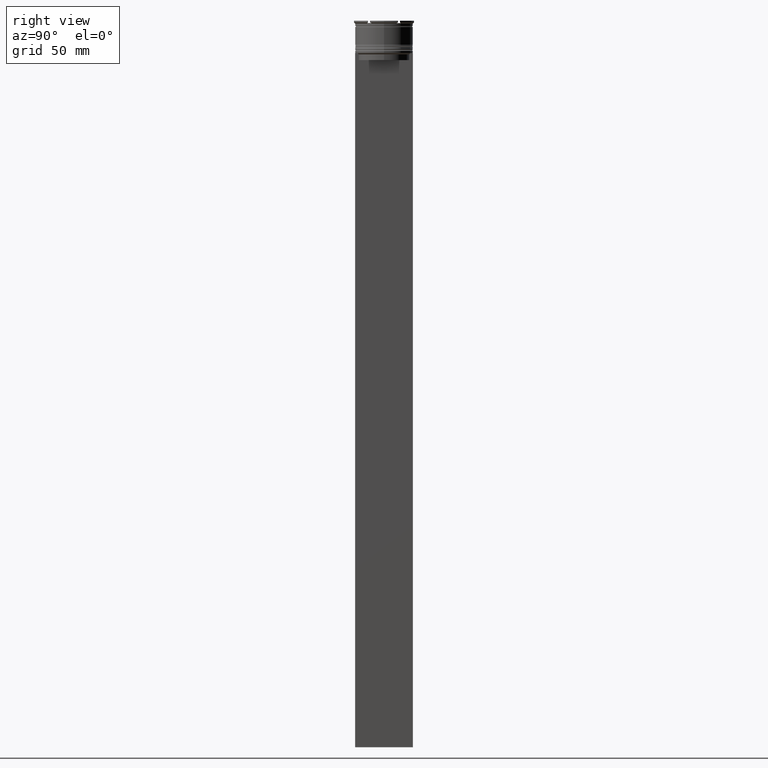
[diagram: clean part render]
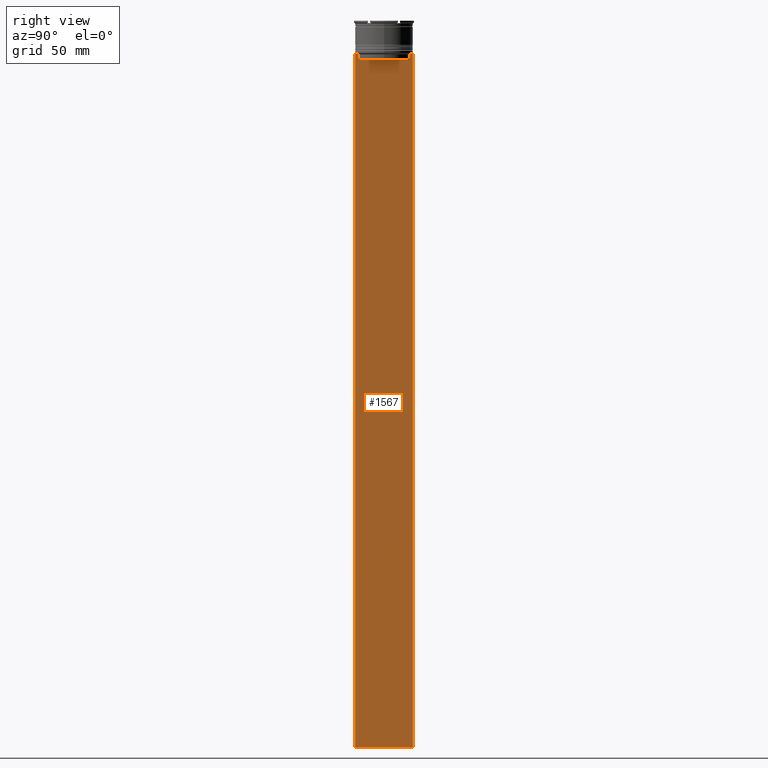
[diagram: same view with one face highlighted and labeled with its STEP entity id]
A machine part, right view. The second image highlights one B-rep face of the part: STEP entity #1567.
In plain terms, the highlighted planar face has unit normal (-1, 0, 0).
Its self-contained STEP definition (entity closure, byte-faithful):
#13 = CARTESIAN_POINT ( 'NONE',  ( 0.5000000000000000000, -12.38991525394746773, -14.00000000000000178 ) ) ;
#21 = VERTEX_POINT ( 'NONE', #1343 ) ;
#25 = EDGE_CURVE ( 'NONE', #1984, #1923, #521, .T. ) ;
#45 = CARTESIAN_POINT ( 'NONE',  ( 0.5000000000000000000, -12.49999999999999289, -314.0000000000000000 ) ) ;
#76 = CARTESIAN_POINT ( 'NONE',  ( 0.5000000000000000000, 10.88852607105296144, -17.00000000000000000 ) ) ;
#81 = EDGE_CURVE ( 'NONE', #21, #2035, #1091, .T. ) ;
#173 = LINE ( 'NONE', #894, #2297 ) ;
#188 = EDGE_CURVE ( 'NONE', #235, #1984, #1826, .T. ) ;
#232 = DIRECTION ( 'NONE',  ( -0.000000000000000000, -0.000000000000000000, 1.000000000000000000 ) ) ;
#235 = VERTEX_POINT ( 'NONE', #937 ) ;
#260 = EDGE_CURVE ( 'NONE', #576, #21, #1197, .T. ) ;
#276 = CARTESIAN_POINT ( 'NONE',  ( 0.5000000000000000000, 10.90000000000000213, -17.00000000000000000 ) ) ;
#311 = LINE ( 'NONE', #978, #1248 ) ;
#336 = CARTESIAN_POINT ( 'NONE',  ( 0.5000000000000000000, 12.38991525394746773, -14.00000000000000178 ) ) ;
#405 = VERTEX_POINT ( 'NONE', #76 ) ;
#406 = CARTESIAN_POINT ( 'NONE',  ( 0.5000000000000000000, 10.88852607105296322, -14.50000000000000000 ) ) ;
#407 = ORIENTED_EDGE ( 'NONE', *, *, #2543, .T. ) ;
#457 = CARTESIAN_POINT ( 'NONE',  ( 0.5000000000000000000, -12.49999999999999289, -314.0000000000000000 ) ) ;
#470 = FACE_OUTER_BOUND ( 'NONE', #1754, .T. ) ;
#479 = EDGE_CURVE ( 'NONE', #1422, #1840, #173, .T. ) ;
#521 = B_SPLINE_CURVE_WITH_KNOTS ( 'NONE', 3,
 ( #1714, #2396, #1126, #2208 ),
 .UNSPECIFIED., .F., .F.,
 ( 4, 4 ),
 ( 0.05041323384703226551, 0.05112713601261605068 ),
 .UNSPECIFIED. ) ;
#562 = DIRECTION ( 'NONE',  ( 0.000000000000000000, -1.000000000000000000, 0.000000000000000000 ) ) ;
#573 = DIRECTION ( 'NONE',  ( 0.000000000000000000, 0.000000000000000000, -1.000000000000000000 ) ) ;
#576 = VERTEX_POINT ( 'NONE', #13 ) ;
#584 = VERTEX_POINT ( 'NONE', #1804 ) ;
#619 = EDGE_CURVE ( 'NONE', #405, #235, #734, .T. ) ;
#627 = DIRECTION ( 'NONE',  ( 0.000000000000000000, -1.000000000000000000, 0.000000000000000000 ) ) ;
#645 = DIRECTION ( 'NONE',  ( 0.000000000000000000, 0.000000000000000000, 1.000000000000000000 ) ) ;
#687 = ORIENTED_EDGE ( 'NONE', *, *, #1658, .T. ) ;
#734 = LINE ( 'NONE', #276, #1697 ) ;
#772 = CARTESIAN_POINT ( 'NONE',  ( 0.5000000000000000000, -12.49999999999999289, -14.00000000000000178 ) ) ;
#793 = DIRECTION ( 'NONE',  ( 0.000000000000000000, -1.000000000000000000, 0.000000000000000000 ) ) ;
#889 = ORIENTED_EDGE ( 'NONE', *, *, #2009, .F. ) ;
#894 = CARTESIAN_POINT ( 'NONE',  ( 0.5000000000000000000, -12.49999999999999289, -14.00000000000000178 ) ) ;
#901 = DIRECTION ( 'NONE',  ( -1.000000000000000000, 0.000000000000000000, 0.000000000000000000 ) ) ;
#929 = ORIENTED_EDGE ( 'NONE', *, *, #260, .T. ) ;
#936 = EDGE_CURVE ( 'NONE', #584, #405, #1729, .T. ) ;
#937 = CARTESIAN_POINT ( 'NONE',  ( 0.5000000000000000000, -10.88852607105296144, -17.00000000000000000 ) ) ;
#978 = CARTESIAN_POINT ( 'NONE',  ( 0.5000000000000000000, 12.50000000000000711, 11.01999200639360765 ) ) ;
#995 = EDGE_CURVE ( 'NONE', #1840, #2764, #2169, .T. ) ;
#1090 = DIRECTION ( 'NONE',  ( 0.000000000000000000, -1.000000000000000000, 0.000000000000000000 ) ) ;
#1091 = LINE ( 'NONE', #1534, #2192 ) ;
#1102 = DIRECTION ( 'NONE',  ( 0.000000000000000000, 0.000000000000000000, -1.000000000000000000 ) ) ;
#1126 = CARTESIAN_POINT ( 'NONE',  ( 0.5000000000000000000, -11.22219891450652973, -14.16667035398018903 ) ) ;
#1186 = VECTOR ( 'NONE', #627, 1000.000000000000000 ) ;
#1197 = LINE ( 'NONE', #2799, #1242 ) ;
#1223 = CARTESIAN_POINT ( 'NONE',  ( 0.5000000000000000000, -10.88852607105296322, -14.50000000000000000 ) ) ;
#1242 = VECTOR ( 'NONE', #793, 1000.000000000000000 ) ;
#1248 = VECTOR ( 'NONE', #1646, 1000.000000000000000 ) ;
#1343 = CARTESIAN_POINT ( 'NONE',  ( 0.5000000000000000000, -12.49999999999999289, -14.00000000000000178 ) ) ;
#1360 = DIRECTION ( 'NONE',  ( 0.000000000000000000, 1.000000000000000000, 0.000000000000000000 ) ) ;
#1389 = CARTESIAN_POINT ( 'NONE',  ( 0.5000000000000000000, -10.88852607105296322, 0.000000000000000000 ) ) ;
#1422 = VERTEX_POINT ( 'NONE', #2509 ) ;
#1491 = CARTESIAN_POINT ( 'NONE',  ( 0.5000000000000000000, -11.38902980942626719, -14.00000000000000178 ) ) ;
#1497 = CARTESIAN_POINT ( 'NONE',  ( 0.5000000000000000000, 11.05536450345590538, -14.33333719074559376 ) ) ;
#1534 = CARTESIAN_POINT ( 'NONE',  ( 0.5000000000000000000, -12.49999999999999289, 11.01999200639360765 ) ) ;
#1567 = ADVANCED_FACE ( 'NONE', ( #470 ), #2468, .F. ) ;
#1615 = ORIENTED_EDGE ( 'NONE', *, *, #188, .T. ) ;
#1625 = ORIENTED_EDGE ( 'NONE', *, *, #619, .T. ) ;
#1644 = ORIENTED_EDGE ( 'NONE', *, *, #81, .T. ) ;
#1646 = DIRECTION ( 'NONE',  ( 0.000000000000000000, 0.000000000000000000, -1.000000000000000000 ) ) ;
#1648 = B_SPLINE_CURVE_WITH_KNOTS ( 'NONE', 3,
 ( #2625, #1986, #1497, #406 ),
 .UNSPECIFIED., .F., .F.,
 ( 4, 4 ),
 ( 0.01935560801904634073, 0.02006307108468586772 ),
 .UNSPECIFIED. ) ;
#1658 = EDGE_CURVE ( 'NONE', #1923, #576, #2305, .T. ) ;
#1691 = VECTOR ( 'NONE', #232, 1000.000000000000000 ) ;
#1697 = VECTOR ( 'NONE', #562, 1000.000000000000000 ) ;
#1714 = CARTESIAN_POINT ( 'NONE',  ( 0.5000000000000000000, -10.88852607105296322, -14.50000000000000000 ) ) ;
#1729 = LINE ( 'NONE', #2805, #1789 ) ;
#1753 = CARTESIAN_POINT ( 'NONE',  ( 0.5000000000000000000, -12.49999999999999289, 11.01999200639360765 ) ) ;
#1754 = EDGE_LOOP ( 'NONE', ( #2786, #407, #1899, #1625, #1615, #2352, #687, #929, #1644, #2456, #889, #2207 ) ) ;
#1789 = VECTOR ( 'NONE', #573, 1000.000000000000000 ) ;
#1804 = CARTESIAN_POINT ( 'NONE',  ( 0.5000000000000000000, 10.88852607105296322, -14.50000000000000000 ) ) ;
#1807 = VERTEX_POINT ( 'NONE', #2443 ) ;
#1826 = LINE ( 'NONE', #1389, #1691 ) ;
#1840 = VERTEX_POINT ( 'NONE', #336 ) ;
#1899 = ORIENTED_EDGE ( 'NONE', *, *, #936, .T. ) ;
#1923 = VERTEX_POINT ( 'NONE', #1491 ) ;
#1943 = CARTESIAN_POINT ( 'NONE',  ( 0.5000000000000000000, -12.49999999999999289, -14.00000000000000178 ) ) ;
#1984 = VERTEX_POINT ( 'NONE', #1223 ) ;
#1986 = CARTESIAN_POINT ( 'NONE',  ( 0.5000000000000000000, 11.22219891375843304, -14.16667035472756808 ) ) ;
#2009 = EDGE_CURVE ( 'NONE', #1422, #1807, #311, .T. ) ;
#2032 = DIRECTION ( 'NONE',  ( 0.000000000000000000, -1.000000000000000000, 0.000000000000000000 ) ) ;
#2035 = VERTEX_POINT ( 'NONE', #45 ) ;
#2156 = AXIS2_PLACEMENT_3D ( 'NONE', #1753, #901, #645 ) ;
#2169 = LINE ( 'NONE', #1943, #1186 ) ;
#2192 = VECTOR ( 'NONE', #1102, 1000.000000000000000 ) ;
#2207 = ORIENTED_EDGE ( 'NONE', *, *, #479, .T. ) ;
#2208 = CARTESIAN_POINT ( 'NONE',  ( 0.5000000000000000000, -11.38902980942626719, -14.00000000000000178 ) ) ;
#2212 = VECTOR ( 'NONE', #1360, 1000.000000000000000 ) ;
#2297 = VECTOR ( 'NONE', #1090, 1000.000000000000000 ) ;
#2305 = LINE ( 'NONE', #772, #2623 ) ;
#2352 = ORIENTED_EDGE ( 'NONE', *, *, #25, .T. ) ;
#2396 = CARTESIAN_POINT ( 'NONE',  ( 0.5000000000000000000, -11.05536450423839234, -14.33333718996393102 ) ) ;
#2443 = CARTESIAN_POINT ( 'NONE',  ( 0.5000000000000000000, 12.50000000000000711, -314.0000000000000000 ) ) ;
#2456 = ORIENTED_EDGE ( 'NONE', *, *, #2649, .T. ) ;
#2468 = PLANE ( 'NONE',  #2156 ) ;
#2470 = CARTESIAN_POINT ( 'NONE',  ( 0.5000000000000000000, 11.38902980942626719, -14.00000000000000178 ) ) ;
#2509 = CARTESIAN_POINT ( 'NONE',  ( 0.5000000000000000000, 12.50000000000000711, -14.00000000000000178 ) ) ;
#2543 = EDGE_CURVE ( 'NONE', #2764, #584, #1648, .T. ) ;
#2623 = VECTOR ( 'NONE', #2032, 1000.000000000000000 ) ;
#2625 = CARTESIAN_POINT ( 'NONE',  ( 0.5000000000000000000, 11.38902980942626719, -14.00000000000000178 ) ) ;
#2649 = EDGE_CURVE ( 'NONE', #2035, #1807, #2692, .T. ) ;
#2692 = LINE ( 'NONE', #457, #2212 ) ;
#2764 = VERTEX_POINT ( 'NONE', #2470 ) ;
#2786 = ORIENTED_EDGE ( 'NONE', *, *, #995, .T. ) ;
#2799 = CARTESIAN_POINT ( 'NONE',  ( 0.5000000000000000000, -12.49999999999999289, -14.00000000000000178 ) ) ;
#2805 = CARTESIAN_POINT ( 'NONE',  ( 0.5000000000000000000, 10.88852607105296322, 0.000000000000000000 ) ) ;